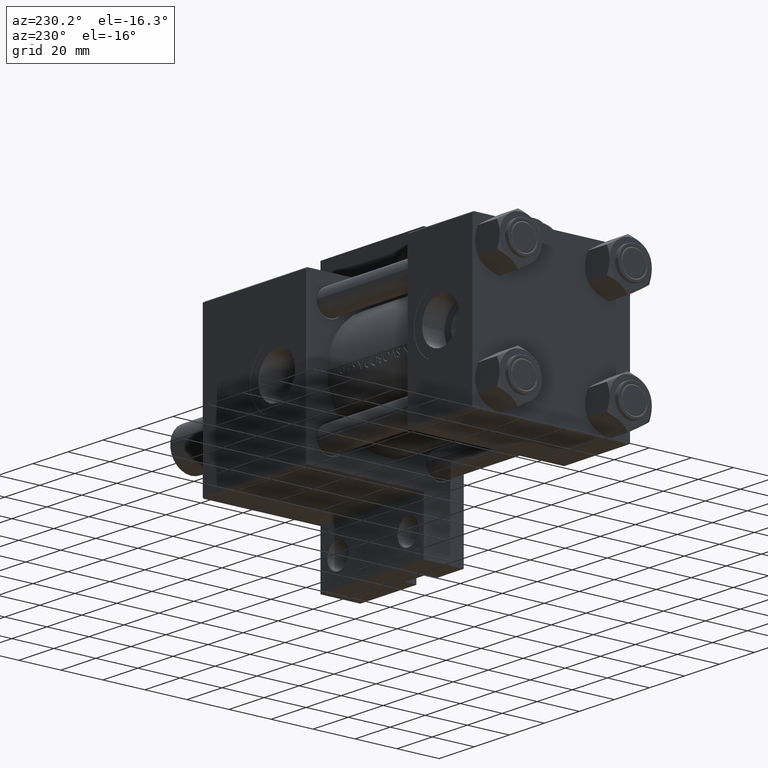
[diagram: clean part render]
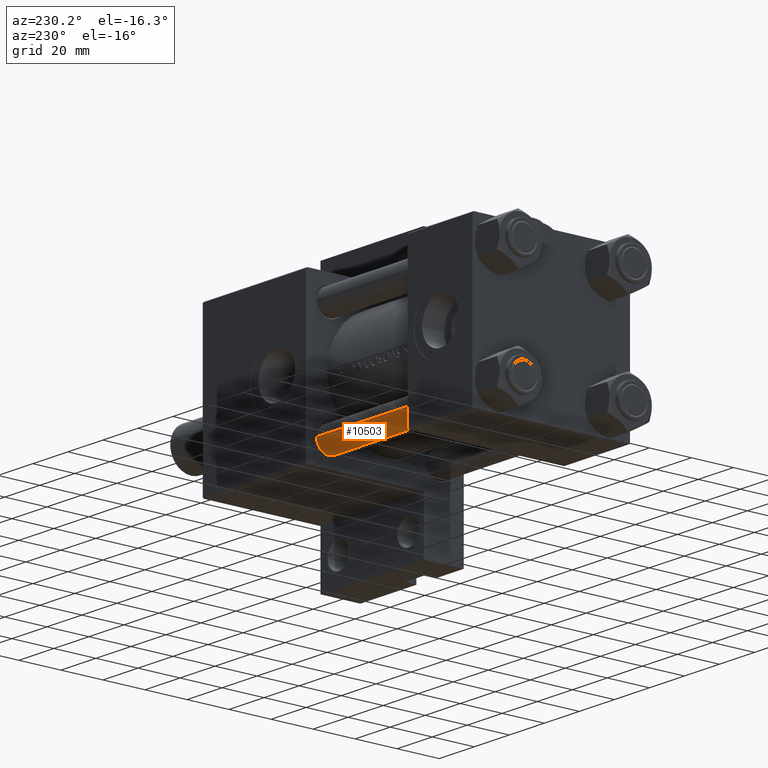
[diagram: same view with one face highlighted and labeled with its STEP entity id]
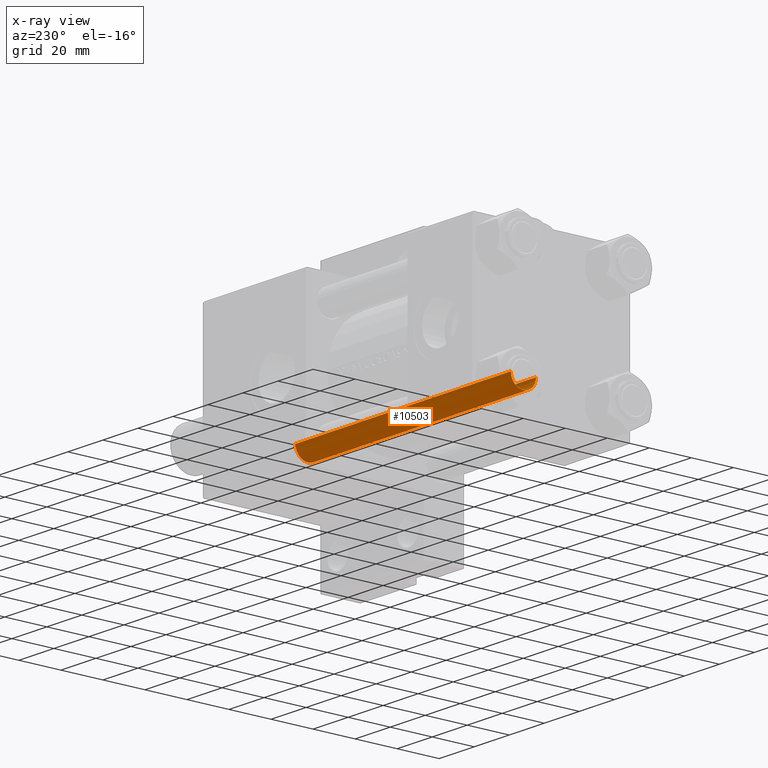
[diagram: x-ray of the same camera — body ghosted, the highlighted face saturated]
A machine part, auxiliary view. The second image highlights one B-rep face of the part: STEP entity #10503.
The next image is the same camera in x-ray: the body ghosted, the highlighted face saturated — about 0% of this face is hidden behind the body in this view.
In plain terms, the highlighted cylindrical surface (edge-blend (fillet) strip) has radius 6 mm, axis along (-1, -0, 0).
Its self-contained STEP definition (entity closure, byte-faithful):
#307 = ORIENTED_EDGE ( 'NONE', *, *, #34685, .T. ) ;
#715 = ORIENTED_EDGE ( 'NONE', *, *, #47806, .T. ) ;
#1761 = DIRECTION ( 'NONE',  ( -0.000000000000000000, -0.000000000000000000, -1.000000000000000000 ) ) ;
#1905 = CIRCLE ( 'NONE', #11730, 6.000000000000000888 ) ;
#2121 = CARTESIAN_POINT ( 'NONE',  ( 0.000000000000000000, 0.000000000000000000, 124.0000000000000000 ) ) ;
#3327 = VERTEX_POINT ( 'NONE', #30535 ) ;
#6279 = CARTESIAN_POINT ( 'NONE',  ( 6.000000000000000888, 7.347880794884120722E-16, 0.4999999999999865663 ) ) ;
#7824 = DIRECTION ( 'NONE',  ( -0.000000000000000000, -0.000000000000000000, -1.000000000000000000 ) ) ;
#8343 = ORIENTED_EDGE ( 'NONE', *, *, #38925, .F. ) ;
#8621 = VERTEX_POINT ( 'NONE', #23917 ) ;
#10255 = AXIS2_PLACEMENT_3D ( 'NONE', #2121, #49068, #21919 ) ;
#10503 = ADVANCED_FACE ( 'NONE', ( #29533 ), #37640, .T. ) ;
#11392 = DIRECTION ( 'NONE',  ( -0.000000000000000000, -0.000000000000000000, 1.000000000000000000 ) ) ;
#11730 = AXIS2_PLACEMENT_3D ( 'NONE', #22535, #26088, #19478 ) ;
#12691 = CARTESIAN_POINT ( 'NONE',  ( 6.000000000000000888, 7.347880794884120722E-16, 124.0000000000000000 ) ) ;
#16634 = EDGE_CURVE ( 'NONE', #3327, #23134, #20091, .T. ) ;
#19478 = DIRECTION ( 'NONE',  ( 1.000000000000000000, 0.000000000000000000, 0.000000000000000000 ) ) ;
#20091 = CIRCLE ( 'NONE', #41142, 6.000000000000000888 ) ;
#21919 = DIRECTION ( 'NONE',  ( -1.000000000000000000, 0.000000000000000000, 0.000000000000000000 ) ) ;
#22535 = CARTESIAN_POINT ( 'NONE',  ( 0.000000000000000000, 0.000000000000000000, 123.5000000000000426 ) ) ;
#23065 = LINE ( 'NONE', #26369, #44615 ) ;
#23134 = VERTEX_POINT ( 'NONE', #6279 ) ;
#23917 = CARTESIAN_POINT ( 'NONE',  ( 6.000000000000000888, 7.347880794884120722E-16, 123.5000000000000426 ) ) ;
#26088 = DIRECTION ( 'NONE',  ( 0.000000000000000000, 0.000000000000000000, -1.000000000000000000 ) ) ;
#26369 = CARTESIAN_POINT ( 'NONE',  ( -6.000000000000000888, 0.000000000000000000, 124.0000000000000000 ) ) ;
#29533 = FACE_OUTER_BOUND ( 'NONE', #48765, .T. ) ;
#29677 = DIRECTION ( 'NONE',  ( 1.000000000000000000, 0.000000000000000000, 0.000000000000000000 ) ) ;
#30535 = CARTESIAN_POINT ( 'NONE',  ( -6.000000000000000888, 0.000000000000000000, 0.4999999999999865663 ) ) ;
#32224 = ORIENTED_EDGE ( 'NONE', *, *, #16634, .T. ) ;
#34685 = EDGE_CURVE ( 'NONE', #43765, #3327, #23065, .T. ) ;
#36528 = LINE ( 'NONE', #12691, #36582 ) ;
#36582 = VECTOR ( 'NONE', #1761, 1000.000000000000000 ) ;
#37640 = CYLINDRICAL_SURFACE ( 'NONE', #10255, 6.000000000000000888 ) ;
#38925 = EDGE_CURVE ( 'NONE', #8621, #23134, #36528, .T. ) ;
#41142 = AXIS2_PLACEMENT_3D ( 'NONE', #46148, #11392, #29677 ) ;
#43765 = VERTEX_POINT ( 'NONE', #46888 ) ;
#44615 = VECTOR ( 'NONE', #7824, 1000.000000000000000 ) ;
#46148 = CARTESIAN_POINT ( 'NONE',  ( 0.000000000000000000, 0.000000000000000000, 0.4999999999999865663 ) ) ;
#46888 = CARTESIAN_POINT ( 'NONE',  ( -6.000000000000000888, 0.000000000000000000, 123.5000000000000426 ) ) ;
#47806 = EDGE_CURVE ( 'NONE', #8621, #43765, #1905, .T. ) ;
#48765 = EDGE_LOOP ( 'NONE', ( #8343, #715, #307, #32224 ) ) ;
#49068 = DIRECTION ( 'NONE',  ( -0.000000000000000000, -0.000000000000000000, -1.000000000000000000 ) ) ;